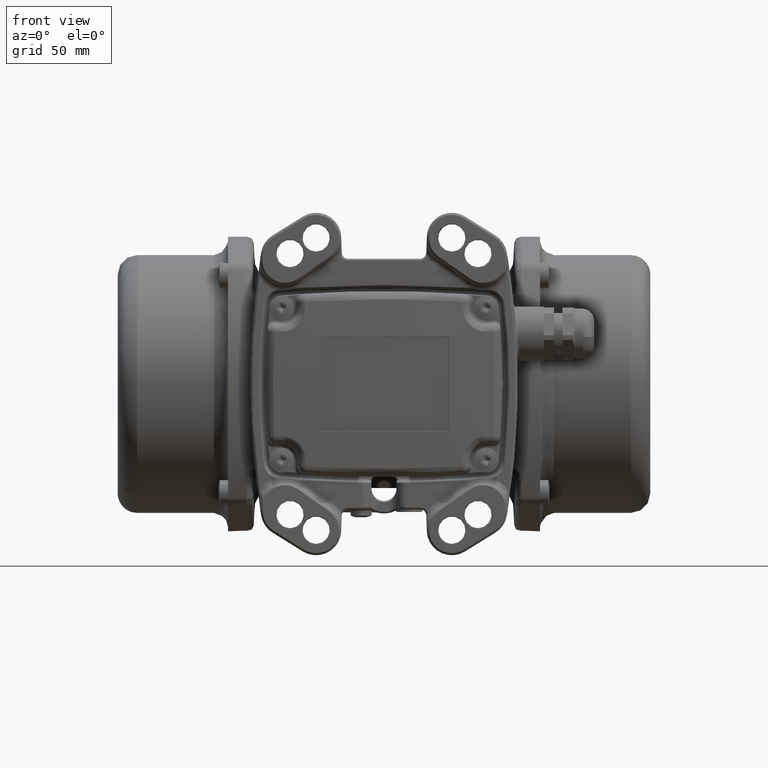
[diagram: clean part render]
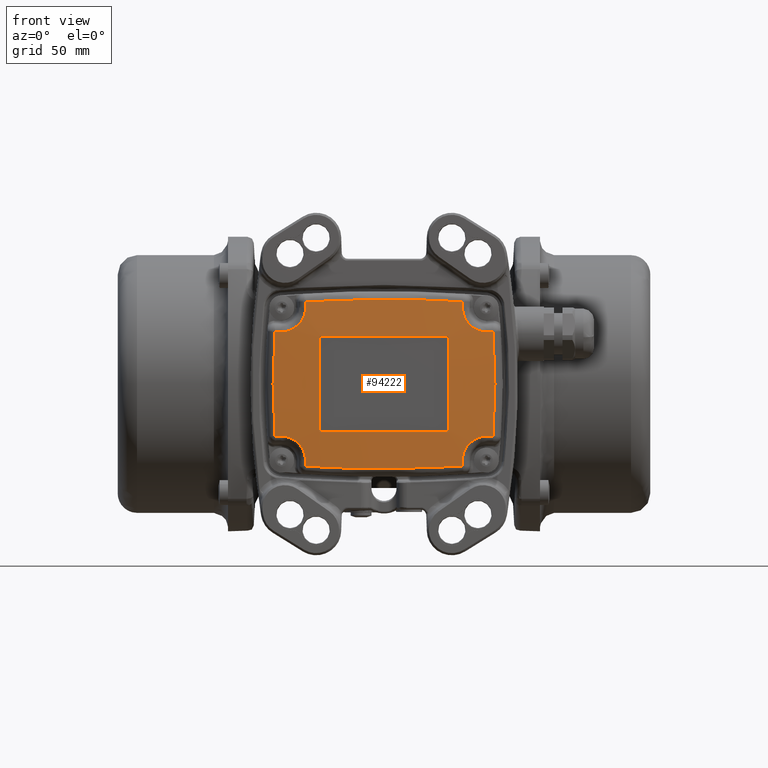
[diagram: same view with one face highlighted and labeled with its STEP entity id]
A machine part, front view. The second image highlights one B-rep face of the part: STEP entity #94222.
In plain terms, the highlighted face is a freeform B-spline surface patch.
Its self-contained STEP definition (entity closure, byte-faithful):
#812 = EDGE_CURVE ( 'NONE', #86250, #3544, #73728, .T. ) ;
#866 = EDGE_CURVE ( 'NONE', #70400, #115326, #30362, .T. ) ;
#1364 =( BOUNDED_SURFACE ( )  B_SPLINE_SURFACE ( 3, 3, ( 
 ( #114394, #132785, #132695, #70823 ),
 ( #48204, #16204, #103019, #116739 ),
 ( #107544, #82432, #105279, #61848 ),
 ( #59613, #135119, #41381, #52790 ) ),
 .UNSPECIFIED., .F., .F., .F. ) 
 B_SPLINE_SURFACE_WITH_KNOTS ( ( 4, 4 ),
 ( 4, 4 ),
 ( 0.4871367932843669900, 0.5128632067156330100 ),
 ( 0.0000000000000000000, 1.000000000000000000 ),
 .UNSPECIFIED. ) 
 GEOMETRIC_REPRESENTATION_ITEM ( )  RATIONAL_B_SPLINE_SURFACE ( (
 ( 0.5016008385710260000, 0.5008450018479929700, 0.5008450018479929700, 0.5016008385710260000),
 ( 0.5011607277355240000, 0.5004055541930649800, 0.5004055541930649800, 0.5011607277355240000),
 ( 0.5011607277355240000, 0.5004055541930649800, 0.5004055541930649800, 0.5011607277355240000),
 ( 0.5016008385710260000, 0.5008450018479929700, 0.5008450018479929700, 0.5016008385710260000) ) ) 
 REPRESENTATION_ITEM ( '' )  SURFACE ( )  );
#1473 = CARTESIAN_POINT ( 'NONE',  ( 52.81524817154758700, 2.875063275322053100, 16.65728753357093000 ) ) ;
#1859 = CARTESIAN_POINT ( 'NONE',  ( -44.06301894063135200, 2.642379956203949800, -26.18110050542689700 ) ) ;
#2108 = CARTESIAN_POINT ( 'NONE',  ( 37.93716485728749900, 2.606402533986150100, -33.63715605715904600 ) ) ;
#2764 = CARTESIAN_POINT ( 'NONE',  ( -52.81524817303401400, 2.875063275423016300, -16.65728753369240800 ) ) ;
#2855 = VERTEX_POINT ( 'NONE', #140375 ) ;
#3451 = CARTESIAN_POINT ( 'NONE',  ( 30.00000000000000000, 1.892782702349210100, -23.00000000000000000 ) ) ;
#3544 = VERTEX_POINT ( 'NONE', #40802 ) ;
#3774 = CARTESIAN_POINT ( 'NONE',  ( -38.16002935998825800, 2.586573972529019500, 32.90459729198814600 ) ) ;
#4007 = ORIENTED_EDGE ( 'NONE', *, *, #81472, .F. ) ;
#4437 = CARTESIAN_POINT ( 'NONE',  ( -31.00000000000000000, 1.902865526397729900, 22.00000000000000000 ) ) ;
#4689 = VERTEX_POINT ( 'NONE', #107903 ) ;
#5135 = CARTESIAN_POINT ( 'NONE',  ( 37.54392889165274000, 2.806128083525811300, -38.49131229580952900 ) ) ;
#5787 = CARTESIAN_POINT ( 'NONE',  ( 37.54183547159540500, 2.686201719472045100, 35.91052130750154700 ) ) ;
#5987 = CARTESIAN_POINT ( 'NONE',  ( -39.94739249721833800, 2.542089784710939600, 29.52930500151580200 ) ) ;
#6106 = CARTESIAN_POINT ( 'NONE',  ( -39.94989948243100000, 2.543520464495070000, -29.55715623813360100 ) ) ;
#6417 = CARTESIAN_POINT ( 'NONE',  ( -40.43920337565280200, 2.546349942903185100, -28.96067049744884900 ) ) ;
#6663 = CARTESIAN_POINT ( 'NONE',  ( 37.84284836838715200, 2.617780749911715200, -34.01235934361579900 ) ) ;
#7122 = EDGE_CURVE ( 'NONE', #102307, #70400, #109196, .T. ) ;
#7319 = CARTESIAN_POINT ( 'NONE',  ( -53.12111026439221500, 2.765606075334226000, 8.328623208491478600 ) ) ;
#7372 = CARTESIAN_POINT ( 'NONE',  ( 37.54392889169306400, 2.806128083527994500, 38.49131229581573900 ) ) ;
#8011 = CARTESIAN_POINT ( 'NONE',  ( 30.61452855930438900, 1.910351011505558900, -22.79960333078422300 ) ) ;
#8356 = CARTESIAN_POINT ( 'NONE',  ( -37.61704535845265700, 2.655818562387674700, 35.14626718639181000 ) ) ;
#8360 = CARTESIAN_POINT ( 'NONE',  ( 42.09572777247855400, 2.576148141032645000, 27.38249567116664800 ) ) ;
#8680 = CARTESIAN_POINT ( 'NONE',  ( -48.47444679830560000, 2.859457358501505300, -24.98172596185515100 ) ) ;
#8852 = B_SPLINE_CURVE_WITH_KNOTS ( 'NONE', 3,
 ( #116874, #32287, #27716, #107677, #45991, #87129, #130632, #68807 ),
 .UNSPECIFIED., .F., .F.,
 ( 4, 2, 2, 4 ),
 ( 2.430363415583862600E-016, 0.0003906244893182076500, 0.0007812489786361723300, 0.001562497957272101600 ),
 .UNSPECIFIED. ) ;
#8909 = CARTESIAN_POINT ( 'NONE',  ( 41.52685450969410400, 2.563593362068095100, -27.87380235629125000 ) ) ;
#9205 = CARTESIAN_POINT ( 'NONE',  ( 31.00000000000000000, 1.902865526397794900, 22.00000000000000000 ) ) ;
#10166 = VERTEX_POINT ( 'NONE', #47501 ) ;
#10378 = CARTESIAN_POINT ( 'NONE',  ( 37.83909803703925000, 2.618315880228835100, 34.02908335875869700 ) ) ;
#10689 = CARTESIAN_POINT ( 'NONE',  ( 41.50647182326255100, 2.562025763685615000, 27.86701594705605000 ) ) ;
#11585 = VERTEX_POINT ( 'NONE', #19628 ) ;
#12078 = EDGE_LOOP ( 'NONE', ( #99882, #30810, #84493, #71059, #120564, #109213, #80353, #70059, #88621, #87773, #123507, #33637, #125932, #107850, #78002, #46082 ) ) ;
#12817 = CARTESIAN_POINT ( 'NONE',  ( -46.59439272607149000, 2.757081961711464600, 25.27797708844844800 ) ) ;
#12919 = CARTESIAN_POINT ( 'NONE',  ( 49.24623146189709600, 2.907106212039035400, 24.98255766441220200 ) ) ;
#13233 = CARTESIAN_POINT ( 'NONE',  ( -37.83909803703925000, 2.618315880229395100, -34.02908335877180000 ) ) ;
#13478 = CARTESIAN_POINT ( 'NONE',  ( -30.13198817827287000, 1.897737788803681700, 22.99999999999999300 ) ) ;
#13558 = ORIENTED_EDGE ( 'NONE', *, *, #108963, .F. ) ;
#13751 = FACE_BOUND ( 'NONE', #76527, .T. ) ;
#15014 = B_SPLINE_CURVE_WITH_KNOTS ( 'NONE', 3,
 ( #15913, #95929, #100502, #20530, #34215, #52507 ),
 .UNSPECIFIED., .F., .F.,
 ( 4, 2, 4 ),
 ( 0.0000000000000000000, 0.5000000000001018100, 1.000000000000000000 ),
 .UNSPECIFIED. ) ;
#15162 = CARTESIAN_POINT ( 'NONE',  ( -45.48897565038739500, 2.703298082380049600, 25.59182184594615000 ) ) ;
#15422 = ORIENTED_EDGE ( 'NONE', *, *, #85384, .F. ) ;
#15913 = CARTESIAN_POINT ( 'NONE',  ( -37.54470649925799800, 2.850674609013264900, 39.39538454969134300 ) ) ;
#16176 = B_SPLINE_CURVE_WITH_KNOTS ( 'NONE', 3,
 ( #70027, #1473, #115746, #108909, #26667, #124937 ),
 .UNSPECIFIED., .F., .F.,
 ( 4, 2, 4 ),
 ( 0.0000000000000000000, 0.4999999999999977800, 1.000000000000000000 ),
 .UNSPECIFIED. ) ;
#16204 = CARTESIAN_POINT ( 'NONE',  ( 17.97915209914969400, 0.04626742185754713400, 13.68893127246250600 ) ) ;
#16791 = CARTESIAN_POINT ( 'NONE',  ( 30.00000000000000000, 1.892782702349149900, 23.00000000000000000 ) ) ;
#16967 = CARTESIAN_POINT ( 'NONE',  ( -51.21619202088125900, 3.030560294266985800, 24.98471253591785400 ) ) ;
#18091 = CARTESIAN_POINT ( 'NONE',  ( 37.54245399917070400, 2.721635527128950300, -36.68294858989130300 ) ) ;
#19628 = CARTESIAN_POINT ( 'NONE',  ( 37.54245399917070400, 2.721635527128950300, -36.68294858989130300 ) ) ;
#19803 = EDGE_CURVE ( 'NONE', #4689, #59611, #15014, .T. ) ;
#19807 = CARTESIAN_POINT ( 'NONE',  ( -38.15375263586454900, 2.587028548022955100, -32.92296201620160200 ) ) ;
#20530 = CARTESIAN_POINT ( 'NONE',  ( 12.51491767263478400, 2.025472868427448800, 40.54485953131023000 ) ) ;
#20896 = B_SPLINE_CURVE_WITH_KNOTS ( 'NONE', 3,
 ( #72338, #5787, #60607, #10378, #104348, #42701, #140747, #122640, #134208, #118053, #56318, #60912, #69999, #10689, #8360, #136440, #24083, #78915, #97207, #35491, #88316, #26640, #106603, #44924, #74597, #12919 ),
 .UNSPECIFIED., .F., .F.,
 ( 4, 2, 2, 2, 2, 2, 2, 2, 2, 2, 2, 2, 4 ),
 ( 0.0000000000000000000, 0.1249999999999999700, 0.1875000000000000300, 0.2500000000000000600, 0.3750000000000001700, 0.4374999999999998900, 0.5000000000000002200, 0.6250000000000008900, 0.6874999999999994400, 0.7500000000000003300, 0.8125000000000001100, 0.8749999999999993300, 1.000000000000000000 ),
 .UNSPECIFIED. ) ;
#21518 = CARTESIAN_POINT ( 'NONE',  ( -37.54245399916925400, 2.721635527128849900, -36.68294858989124700 ) ) ;
#22470 = EDGE_CURVE ( 'NONE', #108661, #52294, #20896, .T. ) ;
#22605 = VERTEX_POINT ( 'NONE', #95077 ) ;
#22637 = B_SPLINE_CURVE_WITH_KNOTS ( 'NONE', 3,
 ( #89125, #82323, #107439, #137269 ),
 .UNSPECIFIED., .F., .F.,
 ( 4, 4 ),
 ( 0.0000000000000000000, 1.000000000000000000 ),
 .UNSPECIFIED. ) ;
#22696 = CARTESIAN_POINT ( 'NONE',  ( -30.26153314473724300, 1.901888544185258400, 22.97404513623068900 ) ) ;
#24083 = CARTESIAN_POINT ( 'NONE',  ( 43.38774351359219800, 2.617275654854780400, 26.54179121983660400 ) ) ;
#24704 = VERTEX_POINT ( 'NONE', #120776 ) ;
#24714 = CARTESIAN_POINT ( 'NONE',  ( -38.72421177387589400, 2.556737118168694900, -31.49445175217565300 ) ) ;
#25710 = VERTEX_POINT ( 'NONE', #57818 ) ;
#26634 = CARTESIAN_POINT ( 'NONE',  ( -39.10558097886119100, 2.549389139244644400, 30.82105074683390500 ) ) ;
#26640 = CARTESIAN_POINT ( 'NONE',  ( 46.20290854489290000, 2.737419454893045100, 25.37572471492940100 ) ) ;
#26667 = CARTESIAN_POINT ( 'NONE',  ( 52.81524817203708700, 2.875063275355019600, -16.65728753360122400 ) ) ;
#27201 = CARTESIAN_POINT ( 'NONE',  ( -30.61452855930439300, 1.910351011505510200, 22.79960333078409100 ) ) ;
#27206 = CARTESIAN_POINT ( 'NONE',  ( 39.30496341503934600, 2.546451930591120000, -30.48872996053205100 ) ) ;
#27716 = CARTESIAN_POINT ( 'NONE',  ( -30.97402466292233900, 1.909074721929224800, -22.26162247081014900 ) ) ;
#28356 = CARTESIAN_POINT ( 'NONE',  ( 51.21619202087925500, 3.030560294287400100, 24.98471253657517000 ) ) ;
#29078 = CARTESIAN_POINT ( 'NONE',  ( -10.00469153641473100, 1.142120912638206800, 22.99999999999995000 ) ) ;
#29824 = FACE_OUTER_BOUND ( 'NONE', #12078, .T. ) ;
#30326 = CARTESIAN_POINT ( 'NONE',  ( -30.00000000000000000, 1.892782702349180100, -23.00000000000000000 ) ) ;
#30362 = B_SPLINE_CURVE_WITH_KNOTS ( 'NONE', 3,
 ( #49290, #78986, #44803, #69859 ),
 .UNSPECIFIED., .F., .F.,
 ( 4, 4 ),
 ( 0.0000000000000000000, 1.000000000000000000 ),
 .UNSPECIFIED. ) ;
#30781 = CARTESIAN_POINT ( 'NONE',  ( 31.00000000000000000, 1.902865526397775000, -22.00000000000000000 ) ) ;
#30810 = ORIENTED_EDGE ( 'NONE', *, *, #77265, .F. ) ;
#31218 = CARTESIAN_POINT ( 'NONE',  ( -42.12373716613669900, 2.577985303583344700, 27.38489474103009900 ) ) ;
#31751 = CARTESIAN_POINT ( 'NONE',  ( -25.02989003420525200, 2.299731648476369000, -40.16242105849983800 ) ) ;
#31784 = CARTESIAN_POINT ( 'NONE',  ( 39.10558097885769500, 2.549389139241284900, -30.82105074674865000 ) ) ;
#31857 = CARTESIAN_POINT ( 'NONE',  ( 12.51491767263984500, 2.025472868427446100, -40.54485953131022300 ) ) ;
#32287 = CARTESIAN_POINT ( 'NONE',  ( -31.00000000000002800, 1.906491263009946000, -22.13203185723004700 ) ) ;
#33637 = ORIENTED_EDGE ( 'NONE', *, *, #101027, .F. ) ;
#34032 = CARTESIAN_POINT ( 'NONE',  ( -30.00000000000000000, 1.892782702349125000, 23.00000000000000000 ) ) ;
#34215 = CARTESIAN_POINT ( 'NONE',  ( 25.02989003390079100, 2.299731648220397300, 40.16242105358686800 ) ) ;
#34733 = B_SPLINE_CURVE_WITH_KNOTS ( 'NONE', 3,
 ( #117937, #56213, #136332, #12817, #92784, #15162, #42602, #92885, #129438, #140938, #31218, #67631, #58581, #40352, #5987, #88311, #26634, #106599, #95178, #56313, #3774, #83739, #111111, #8356, #102002, #49424 ),
 .UNSPECIFIED., .F., .F.,
 ( 4, 2, 2, 2, 2, 2, 2, 2, 2, 2, 2, 2, 4 ),
 ( 0.0000000000000000000, 0.1250000000000001400, 0.1875000000000001900, 0.2500000000000002800, 0.3750000000000003900, 0.4375000000000002200, 0.5000000000000005600, 0.6250000000000001100, 0.6875000000000010000, 0.7500000000000008900, 0.8125000000000005600, 0.8750000000000022200, 1.000000000000000000 ),
 .UNSPECIFIED. ) ;
#35491 = CARTESIAN_POINT ( 'NONE',  ( 45.11163441522540300, 2.686210428177375300, 25.72667158829535000 ) ) ;
#36132 = CARTESIAN_POINT ( 'NONE',  ( 31.00000000000000000, 1.500179009793226200, 7.336097363008673400 ) ) ;
#36235 = CARTESIAN_POINT ( 'NONE',  ( 31.00000000000000000, 1.500179009793229700, -7.336097363008413200 ) ) ;
#36269 = CARTESIAN_POINT ( 'NONE',  ( 43.38857209560244900, 2.616314502997144900, -26.51971218548595000 ) ) ;
#37037 = CARTESIAN_POINT ( 'NONE',  ( -53.12111026502001500, 2.765606075376011700, -8.328623208490780500 ) ) ;
#38644 = CARTESIAN_POINT ( 'NONE',  ( 40.43236099651014800, 2.544997167361109800, -28.94035696710074700 ) ) ;
#39695 = CARTESIAN_POINT ( 'NONE',  ( 49.24623146189709600, 2.907106212039035400, 24.98255766441220200 ) ) ;
#39908 = CARTESIAN_POINT ( 'NONE',  ( -50.23126984647083000, 2.967921037647006900, 24.98361917706639800 ) ) ;
#40049 = EDGE_CURVE ( 'NONE', #66013, #120987, #59960, .T. ) ;
#40352 = CARTESIAN_POINT ( 'NONE',  ( -40.43236099650503900, 2.544997167364399600, 28.94035696720459700 ) ) ;
#40426 = B_SPLINE_CURVE_WITH_KNOTS ( 'NONE', 3,
 ( #58067, #133677, #115299, #21518 ),
 .UNSPECIFIED., .F., .F.,
 ( 4, 4 ),
 ( 0.0000000000000000000, 1.000000000000000000 ),
 .UNSPECIFIED. ) ;
#40529 = CARTESIAN_POINT ( 'NONE',  ( -37.54470649925799800, 2.850674609013264900, 39.39538454969134300 ) ) ;
#40802 = CARTESIAN_POINT ( 'NONE',  ( 31.00000000000000000, 1.902865526397775000, -22.00000000000000000 ) ) ;
#40996 =( BOUNDED_CURVE ( )  B_SPLINE_CURVE ( 3, ( #30326, #53104, #103741, #131340 ),
 .UNSPECIFIED., .F., .F. ) 
 B_SPLINE_CURVE_WITH_KNOTS ( ( 4, 4 ),
 ( 0.0000000000000000000, 0.06001057696739398700 ),
 .UNSPECIFIED. ) 
 CURVE ( )  GEOMETRIC_REPRESENTATION_ITEM ( )  RATIONAL_B_SPLINE_CURVE ( ( 0.5009838173028934300, 0.5007488891380913500, 0.5007490737949262800, 0.5009843712733984500 ) ) 
 REPRESENTATION_ITEM ( '' )  );
#41381 = CARTESIAN_POINT ( 'NONE',  ( -17.99776099484701700, 1.449045158675200500, -41.03076129999738000 ) ) ;
#41558 = VERTEX_POINT ( 'NONE', #131288 ) ;
#41632 = CARTESIAN_POINT ( 'NONE',  ( 37.54470649925910700, 2.850674609016115000, -39.39538454974849200 ) ) ;
#41980 = CARTESIAN_POINT ( 'NONE',  ( 30.79950004440454200, 1.912217033368816000, 22.61466219939200400 ) ) ;
#42602 = CARTESIAN_POINT ( 'NONE',  ( -45.12367237537219500, 2.686741460803554900, 25.72206225809860000 ) ) ;
#42701 = CARTESIAN_POINT ( 'NONE',  ( 38.15375263587034700, 2.587028548026345300, 32.92296201627600300 ) ) ;
#43005 = CARTESIAN_POINT ( 'NONE',  ( -46.20290854489270100, 2.737419454893429600, -25.37572471493870200 ) ) ;
#43072 = B_SPLINE_CURVE_WITH_KNOTS ( 'NONE', 3,
 ( #96444, #7372, #89589, #121569 ),
 .UNSPECIFIED., .F., .F.,
 ( 4, 4 ),
 ( 0.0000000000000000000, 1.000000000000000000 ),
 .UNSPECIFIED. ) ;
#43216 = CARTESIAN_POINT ( 'NONE',  ( -37.54245399916925400, 2.721635527128849900, -36.68294858989124700 ) ) ;
#44412 = ORIENTED_EDGE ( 'NONE', *, *, #97020, .F. ) ;
#44803 = CARTESIAN_POINT ( 'NONE',  ( -51.21619202088286500, 3.030560294251003000, -24.98471253540190800 ) ) ;
#44924 = CARTESIAN_POINT ( 'NONE',  ( 47.71090312585891300, 2.815793518764940100, 25.05659072269169800 ) ) ;
#45496 = CARTESIAN_POINT ( 'NONE',  ( 38.28888708050040200, 2.578062844891624700, -32.54549864939775000 ) ) ;
#45854 = EDGE_CURVE ( 'NONE', #59611, #108661, #43072, .T. ) ;
#45991 = CARTESIAN_POINT ( 'NONE',  ( -30.79950004440451700, 1.912217033368768900, -22.61466219939193000 ) ) ;
#46082 = ORIENTED_EDGE ( 'NONE', *, *, #91670, .F. ) ;
#46626 = CARTESIAN_POINT ( 'NONE',  ( 52.20099806787700200, 3.095023943256494500, 24.98583774727970000 ) ) ;
#47439 = EDGE_CURVE ( 'NONE', #124636, #71356, #76186, .T. ) ;
#47501 = CARTESIAN_POINT ( 'NONE',  ( -37.54245399916895600, 2.721635527128834800, 36.68294858989130300 ) ) ;
#47742 = CARTESIAN_POINT ( 'NONE',  ( 38.58097894422675000, 2.563808555164394800, -31.84146730724490100 ) ) ;
#48204 = CARTESIAN_POINT ( 'NONE',  ( 53.80612426378294800, 2.460312140728272600, 13.68893127246252400 ) ) ;
#49290 = CARTESIAN_POINT ( 'NONE',  ( -49.24623146189679800, 2.907106212042499700, -24.98255766451844900 ) ) ;
#49424 = CARTESIAN_POINT ( 'NONE',  ( -37.54245399916895600, 2.721635527128834800, 36.68294858989130300 ) ) ;
#49549 = CARTESIAN_POINT ( 'NONE',  ( -44.40783960899284500, 2.656174147270919900, -26.01817963570480100 ) ) ;
#49846 = CARTESIAN_POINT ( 'NONE',  ( -37.93146311607895200, 2.607019434216289800, -33.65828988356960100 ) ) ;
#50756 = CARTESIAN_POINT ( 'NONE',  ( -52.20099806790010200, 3.095023943257309500, 24.98583774725984700 ) ) ;
#51129 = CARTESIAN_POINT ( 'NONE',  ( 50.23126984646982200, 2.967921037661878100, 24.98361917754699100 ) ) ;
#51861 = CARTESIAN_POINT ( 'NONE',  ( -37.54245399916895600, 2.721635527128834800, 36.68294858989130300 ) ) ;
#52294 = VERTEX_POINT ( 'NONE', #85733 ) ;
#52331 = B_SPLINE_CURVE_WITH_KNOTS ( 'NONE', 3,
 ( #99033, #103631, #76158, #119578, #41980, #101280, #78487, #16791 ),
 .UNSPECIFIED., .F., .F.,
 ( 4, 2, 2, 4 ),
 ( 0.0000000000000000000, 0.0003906244893179716700, 0.0007812489786359433500, 0.001562497957271886700 ),
 .UNSPECIFIED. ) ;
#52338 = CARTESIAN_POINT ( 'NONE',  ( 42.43395542940390200, 2.586602288713045100, -27.15560101696740200 ) ) ;
#52507 = CARTESIAN_POINT ( 'NONE',  ( 37.54470649924790100, 2.850674609013080100, 39.39538454969739700 ) ) ;
#52790 = CARTESIAN_POINT ( 'NONE',  ( -53.76188572595938100, 3.861105088452391400, -41.03076129999730900 ) ) ;
#53087 = CARTESIAN_POINT ( 'NONE',  ( -52.20099806789570400, 3.095023943256689900, -24.98583774724964700 ) ) ;
#53104 = CARTESIAN_POINT ( 'NONE',  ( -10.00469153641471300, 1.142120912638209500, -23.00000000000006800 ) ) ;
#53301 = VERTEX_POINT ( 'NONE', #105306 ) ;
#53776 = EDGE_CURVE ( 'NONE', #52294, #53301, #72952, .T. ) ;
#54121 = CARTESIAN_POINT ( 'NONE',  ( -45.11163441520770300, 2.686210428172655100, -25.72667158818050100 ) ) ;
#55317 = CARTESIAN_POINT ( 'NONE',  ( -52.81524817337662400, 2.875063275445216300, 16.65728753368784300 ) ) ;
#56213 = CARTESIAN_POINT ( 'NONE',  ( -48.47445888857850300, 2.859458104948649800, 24.98172597525720200 ) ) ;
#56313 = CARTESIAN_POINT ( 'NONE',  ( -38.28888708050370600, 2.578062844890859600, 32.54549864937494200 ) ) ;
#56318 = CARTESIAN_POINT ( 'NONE',  ( 39.94989948241925500, 2.543520464495309800, 29.55715623815275000 ) ) ;
#56887 = CARTESIAN_POINT ( 'NONE',  ( 39.94739249719874900, 2.542089784711695000, -29.52930500156405100 ) ) ;
#57818 = CARTESIAN_POINT ( 'NONE',  ( -31.00000000000000000, 1.902865526397729900, 22.00000000000000000 ) ) ;
#58067 = CARTESIAN_POINT ( 'NONE',  ( -37.54470649926130200, 2.850674609016190100, -39.39538454974810100 ) ) ;
#58581 = CARTESIAN_POINT ( 'NONE',  ( -41.24278524737884100, 2.557872396938324100, 28.13110340053934900 ) ) ;
#59611 = VERTEX_POINT ( 'NONE', #85393 ) ;
#59613 = CARTESIAN_POINT ( 'NONE',  ( 53.61218731782341300, 3.851023014761084000, -41.03076129999730900 ) ) ;
#59960 = B_SPLINE_CURVE_WITH_KNOTS ( 'NONE', 3,
 ( #78680, #16967, #39908, #132535 ),
 .UNSPECIFIED., .F., .F.,
 ( 4, 4 ),
 ( 0.0000000000000000000, 1.000000000000000000 ),
 .UNSPECIFIED. ) ;
#60607 = CARTESIAN_POINT ( 'NONE',  ( 37.61703710040210100, 2.656018194287599800, 35.15063496743489700 ) ) ;
#60912 = CARTESIAN_POINT ( 'NONE',  ( 40.43920337566444100, 2.546349942903194800, 28.96067049742960000 ) ) ;
#61331 = EDGE_CURVE ( 'NONE', #10166, #4689, #127877, .T. ) ;
#61345 = CARTESIAN_POINT ( 'NONE',  ( 31.00000000000000000, 1.902865526397775000, -22.00000000000000000 ) ) ;
#61483 = CARTESIAN_POINT ( 'NONE',  ( 46.22384487856579900, 2.738452340912624900, -25.37009073649045000 ) ) ;
#61848 = CARTESIAN_POINT ( 'NONE',  ( -53.75618097353793000, 2.456948498195791900, -13.68893127246210300 ) ) ;
#63731 = CARTESIAN_POINT ( 'NONE',  ( 46.59439272607410500, 2.757081961711270100, -25.27797708843634800 ) ) ;
#66013 = VERTEX_POINT ( 'NONE', #111734 ) ;
#67631 = CARTESIAN_POINT ( 'NONE',  ( -41.52685450969939800, 2.563593362066269400, 27.87380235622734800 ) ) ;
#68301 = CARTESIAN_POINT ( 'NONE',  ( 45.48897565038500100, 2.703298082379189900, -25.59182184592290100 ) ) ;
#68787 = ORIENTED_EDGE ( 'NONE', *, *, #139033, .F. ) ;
#68807 = CARTESIAN_POINT ( 'NONE',  ( -30.00000000000000000, 1.892782702349180100, -23.00000000000000000 ) ) ;
#69657 = CARTESIAN_POINT ( 'NONE',  ( 30.50361895839137800, 1.908224571309104800, -22.87380287133851200 ) ) ;
#69859 = CARTESIAN_POINT ( 'NONE',  ( -52.20099806789570400, 3.095023943256689900, -24.98583774724964700 ) ) ;
#69999 = CARTESIAN_POINT ( 'NONE',  ( 40.69669110489350300, 2.549214801778835000, 28.67680616195444900 ) ) ;
#70027 = CARTESIAN_POINT ( 'NONE',  ( 52.20099806787700200, 3.095023943256494500, 24.98583774727970000 ) ) ;
#70059 = ORIENTED_EDGE ( 'NONE', *, *, #19803, .F. ) ;
#70400 = VERTEX_POINT ( 'NONE', #107219 ) ;
#70557 = CARTESIAN_POINT ( 'NONE',  ( 44.06089950355834600, 2.641333708668809800, -26.16114214811109700 ) ) ;
#70823 = CARTESIAN_POINT ( 'NONE',  ( -53.76188572595938100, 3.861105088452411000, 41.03076129999770700 ) ) ;
#71059 = ORIENTED_EDGE ( 'NONE', *, *, #92711, .F. ) ;
#71317 = VERTEX_POINT ( 'NONE', #9205 ) ;
#71356 = VERTEX_POINT ( 'NONE', #78028 ) ;
#72229 = CARTESIAN_POINT ( 'NONE',  ( 30.00000000000000000, 1.892782702349149900, 23.00000000000000000 ) ) ;
#72338 = CARTESIAN_POINT ( 'NONE',  ( 37.54245399916920400, 2.721635527128875200, 36.68294858989135300 ) ) ;
#72351 = CARTESIAN_POINT ( 'NONE',  ( -45.47060858715760600, 2.702452522998269700, -25.59808449308609800 ) ) ;
#72952 = B_SPLINE_CURVE_WITH_KNOTS ( 'NONE', 3,
 ( #39695, #51129, #28356, #46626 ),
 .UNSPECIFIED., .F., .F.,
 ( 4, 4 ),
 ( 0.0000000000000000000, 1.000000000000000000 ),
 .UNSPECIFIED. ) ;
#73218 = ORIENTED_EDGE ( 'NONE', *, *, #79778, .F. ) ;
#73378 = CARTESIAN_POINT ( 'NONE',  ( -52.20099806789570400, 3.095023943256689900, -24.98583774724964700 ) ) ;
#73728 = B_SPLINE_CURVE_WITH_KNOTS ( 'NONE', 3,
 ( #3451, #119972, #90232, #69657, #8011, #122201, #87985, #30781 ),
 .UNSPECIFIED., .F., .F.,
 ( 4, 2, 2, 4 ),
 ( 3.469446951953614200E-018, 0.0003906245588087834300, 0.0007812491176175633900, 0.001562498235235123300 ),
 .UNSPECIFIED. ) ;
#74248 = CARTESIAN_POINT ( 'NONE',  ( -31.00000000000000000, 1.500179009793175800, -7.336097363008262200 ) ) ;
#74597 = CARTESIAN_POINT ( 'NONE',  ( 48.47444679831041700, 2.859457358494319900, 24.98172596162610000 ) ) ;
#74615 = CARTESIAN_POINT ( 'NONE',  ( -46.57800393731339700, 2.756239301774169500, -25.28164376433460000 ) ) ;
#74754 = EDGE_CURVE ( 'NONE', #120987, #10166, #34733, .T. ) ;
#75241 = CARTESIAN_POINT ( 'NONE',  ( 25.02989003420829000, 2.299731648478869700, -40.16242105854768600 ) ) ;
#75256 = CARTESIAN_POINT ( 'NONE',  ( -30.00000000000000000, 1.892782702349180100, -23.00000000000000000 ) ) ;
#76158 = CARTESIAN_POINT ( 'NONE',  ( 30.97402466292238200, 1.909074721929272500, 22.26162247081021700 ) ) ;
#76186 =( BOUNDED_CURVE ( )  B_SPLINE_CURVE ( 3, ( #115891, #104417, #29078, #92967 ),
 .UNSPECIFIED., .F., .F. ) 
 B_SPLINE_CURVE_WITH_KNOTS ( ( 4, 4 ),
 ( 0.0000000000000000000, 0.06001057696739398000 ),
 .UNSPECIFIED. ) 
 CURVE ( )  GEOMETRIC_REPRESENTATION_ITEM ( )  RATIONAL_B_SPLINE_CURVE ( ( 0.5009843712733984500, 0.5007490737949262800, 0.5007488891380912400, 0.5009838173028933200 ) ) 
 REPRESENTATION_ITEM ( '' )  );
#76527 = EDGE_LOOP ( 'NONE', ( #97571, #68787, #15422, #4007, #44412, #78111, #13558, #73218 ) ) ;
#77265 = EDGE_CURVE ( 'NONE', #24704, #11585, #110340, .T. ) ;
#78002 = ORIENTED_EDGE ( 'NONE', *, *, #102318, .F. ) ;
#78028 = CARTESIAN_POINT ( 'NONE',  ( -30.00000000000000000, 1.892782702349125000, 23.00000000000000000 ) ) ;
#78111 = ORIENTED_EDGE ( 'NONE', *, *, #47439, .F. ) ;
#78487 = CARTESIAN_POINT ( 'NONE',  ( 30.26397583720585500, 1.902692855761295000, 23.00000000000000000 ) ) ;
#78680 = CARTESIAN_POINT ( 'NONE',  ( -52.20099806790010200, 3.095023943257309500, 24.98583774725984700 ) ) ;
#78915 = CARTESIAN_POINT ( 'NONE',  ( 44.06301894063570000, 2.642379956203829900, 26.18110050541555000 ) ) ;
#78986 = CARTESIAN_POINT ( 'NONE',  ( -50.23126984646904000, 2.967921037665502300, -24.98361917765424100 ) ) ;
#79239 = CARTESIAN_POINT ( 'NONE',  ( -40.69669110489985500, 2.549214801779765300, -28.67680616197510100 ) ) ;
#79778 = EDGE_CURVE ( 'NONE', #3544, #71317, #122957, .T. ) ;
#79790 = CARTESIAN_POINT ( 'NONE',  ( 37.54183544373420000, 2.686200139397565400, -35.91048686348990100 ) ) ;
#80353 = ORIENTED_EDGE ( 'NONE', *, *, #45854, .F. ) ;
#80491 = CARTESIAN_POINT ( 'NONE',  ( 37.54245399917070400, 2.721635527128950300, -36.68294858989130300 ) ) ;
#81472 = EDGE_CURVE ( 'NONE', #25710, #41558, #138002, .T. ) ;
#81492 = CARTESIAN_POINT ( 'NONE',  ( -37.54245399916925400, 2.721635527128849900, -36.68294858989124700 ) ) ;
#82323 = CARTESIAN_POINT ( 'NONE',  ( 51.21619202088282900, 3.030560294253595200, -24.98471253548532200 ) ) ;
#82432 = CARTESIAN_POINT ( 'NONE',  ( 17.97915209914969400, 0.04626742185754362900, -13.68893127246208900 ) ) ;
#83739 = CARTESIAN_POINT ( 'NONE',  ( -37.93716485728745600, 2.606402533986959600, 33.63715605717614900 ) ) ;
#83921 = CARTESIAN_POINT ( 'NONE',  ( -37.54317806073728300, 2.763115031827068100, 37.58716699501571400 ) ) ;
#84493 = ORIENTED_EDGE ( 'NONE', *, *, #91120, .F. ) ;
#85384 = EDGE_CURVE ( 'NONE', #41558, #94012, #8852, .T. ) ;
#85393 = CARTESIAN_POINT ( 'NONE',  ( 37.54470649924790100, 2.850674609013080100, 39.39538454969739700 ) ) ;
#85733 = CARTESIAN_POINT ( 'NONE',  ( 49.24623146189709600, 2.907106212039035400, 24.98255766441220200 ) ) ;
#86088 = CARTESIAN_POINT ( 'NONE',  ( -41.50647182324999600, 2.562025763683385200, -27.86701594701525100 ) ) ;
#86250 = VERTEX_POINT ( 'NONE', #139186 ) ;
#86402 = CARTESIAN_POINT ( 'NONE',  ( -42.09572777247860400, 2.576148141032755100, -27.38249567116635300 ) ) ;
#86629 = CARTESIAN_POINT ( 'NONE',  ( 37.61704535843944800, 2.655818562385475100, -35.14626718635465600 ) ) ;
#87129 = CARTESIAN_POINT ( 'NONE',  ( -30.52290976532976800, 1.909432216014906600, -22.89140627032748700 ) ) ;
#87773 = ORIENTED_EDGE ( 'NONE', *, *, #74754, .F. ) ;
#87985 = CARTESIAN_POINT ( 'NONE',  ( 31.00000000000006800, 1.910117067208319000, -22.26406617562086900 ) ) ;
#88311 = CARTESIAN_POINT ( 'NONE',  ( -39.30496341502953300, 2.546451930591634700, 30.48872996055629900 ) ) ;
#88316 = CARTESIAN_POINT ( 'NONE',  ( 45.47060858715730800, 2.702452522998454800, 25.59808449309535000 ) ) ;
#88621 = ORIENTED_EDGE ( 'NONE', *, *, #61331, .F. ) ;
#88868 = CARTESIAN_POINT ( 'NONE',  ( 41.24278524737624700, 2.557872396940164900, -28.13110340059114700 ) ) ;
#89125 = CARTESIAN_POINT ( 'NONE',  ( 52.20099806788330500, 3.095023943256249900, -24.98583774725915100 ) ) ;
#89589 = CARTESIAN_POINT ( 'NONE',  ( 37.54317806074298100, 2.763115031827506000, 37.58716699501778200 ) ) ;
#90232 = CARTESIAN_POINT ( 'NONE',  ( 30.26153314473726800, 1.901888544185305100, -22.97404513623059300 ) ) ;
#91120 = EDGE_CURVE ( 'NONE', #22605, #24704, #22637, .T. ) ;
#91670 = EDGE_CURVE ( 'NONE', #95336, #2855, #133937, .T. ) ;
#92711 = EDGE_CURVE ( 'NONE', #53301, #22605, #16176, .T. ) ;
#92784 = CARTESIAN_POINT ( 'NONE',  ( -46.22384487856329100, 2.738452340911729600, 25.37009073646740000 ) ) ;
#92885 = CARTESIAN_POINT ( 'NONE',  ( -44.06089950356114600, 2.641333708667459300, 26.16114214806915000 ) ) ;
#92967 = CARTESIAN_POINT ( 'NONE',  ( -30.00000000000000000, 1.892782702349125000, 23.00000000000000000 ) ) ;
#93433 = CARTESIAN_POINT ( 'NONE',  ( -12.51491767263969600, 2.025472868427456300, -40.54485953131022300 ) ) ;
#93463 = CARTESIAN_POINT ( 'NONE',  ( -30.89132530933534300, 1.913148850822589800, 22.52305118310258100 ) ) ;
#93466 = CARTESIAN_POINT ( 'NONE',  ( 45.12367237537360200, 2.686741460803090000, -25.72206225807715200 ) ) ;
#94012 = VERTEX_POINT ( 'NONE', #75256 ) ;
#94222 = ADVANCED_FACE ( 'NONE', ( #13751, #29824 ), #1364, .F. ) ;
#95077 = CARTESIAN_POINT ( 'NONE',  ( 52.20099806788330500, 3.095023943256249900, -24.98583774725915100 ) ) ;
#95178 = CARTESIAN_POINT ( 'NONE',  ( -38.58097894422346000, 2.563808555165134200, 31.84146730726749300 ) ) ;
#95336 = VERTEX_POINT ( 'NONE', #137683 ) ;
#95929 = CARTESIAN_POINT ( 'NONE',  ( -25.02989003391178700, 2.299731648221361000, 40.16242105360133500 ) ) ;
#96440 = CARTESIAN_POINT ( 'NONE',  ( 37.54317806070158500, 2.763115031825446300, -37.58716699501537300 ) ) ;
#96444 = CARTESIAN_POINT ( 'NONE',  ( 37.54470649924790100, 2.850674609013080100, 39.39538454969739700 ) ) ;
#97020 = EDGE_CURVE ( 'NONE', #71356, #25710, #119283, .T. ) ;
#97207 = CARTESIAN_POINT ( 'NONE',  ( 44.40783960897509500, 2.656174147266225000, 26.01817963558979900 ) ) ;
#97571 = ORIENTED_EDGE ( 'NONE', *, *, #812, .F. ) ;
#97988 = CARTESIAN_POINT ( 'NONE',  ( 38.16002935998825100, 2.586573972529639900, -32.90459729200534900 ) ) ;
#98559 = EDGE_CURVE ( 'NONE', #11585, #95336, #115676, .T. ) ;
#99033 = CARTESIAN_POINT ( 'NONE',  ( 31.00000000000000000, 1.902865526397794900, 22.00000000000000000 ) ) ;
#99769 = CARTESIAN_POINT ( 'NONE',  ( -49.24623146189679800, 2.907106212042499700, -24.98255766451844900 ) ) ;
#99882 = ORIENTED_EDGE ( 'NONE', *, *, #98559, .F. ) ;
#100502 = CARTESIAN_POINT ( 'NONE',  ( -12.51491767263979100, 2.025472868427439500, 40.54485953131023000 ) ) ;
#101027 = EDGE_CURVE ( 'NONE', #115326, #66013, #102160, .T. ) ;
#101280 = CARTESIAN_POINT ( 'NONE',  ( 30.52290976532976800, 1.909432216014952600, 22.89140627032754000 ) ) ;
#102002 = CARTESIAN_POINT ( 'NONE',  ( -37.54183544363125700, 2.686200139391469400, 35.91048686346236000 ) ) ;
#102160 = B_SPLINE_CURVE_WITH_KNOTS ( 'NONE', 3,
 ( #53087, #2764, #37037, #7319, #55317, #50756 ),
 .UNSPECIFIED., .F., .F.,
 ( 4, 2, 4 ),
 ( 0.0000000000000000000, 0.4999999999999651900, 1.000000000000000000 ),
 .UNSPECIFIED. ) ;
#102178 = CARTESIAN_POINT ( 'NONE',  ( -37.54392889171163000, 2.806128083528522500, 38.49131229580891000 ) ) ;
#102307 = VERTEX_POINT ( 'NONE', #43216 ) ;
#102318 = EDGE_CURVE ( 'NONE', #2855, #102307, #40426, .T. ) ;
#103019 = CARTESIAN_POINT ( 'NONE',  ( -17.92905789702237500, 0.04514451562989531300, 13.68893127246250600 ) ) ;
#103631 = CARTESIAN_POINT ( 'NONE',  ( 31.00000000000000400, 1.906491263009989700, 22.13203185723028800 ) ) ;
#103741 = CARTESIAN_POINT ( 'NONE',  ( 10.00469890990890000, 1.142121189453181800, -23.00000000000007500 ) ) ;
#104348 = CARTESIAN_POINT ( 'NONE',  ( 37.93146311607310400, 2.607019434212924900, 33.65828988349484500 ) ) ;
#104417 = CARTESIAN_POINT ( 'NONE',  ( 10.00469890990888200, 1.142121189453177500, 22.99999999999994700 ) ) ;
#104667 = CARTESIAN_POINT ( 'NONE',  ( -43.38774351359649700, 2.617275654854635200, -26.54179121982535200 ) ) ;
#105279 = CARTESIAN_POINT ( 'NONE',  ( -17.92905789702237500, 0.04514451562988831100, -13.68893127246208900 ) ) ;
#105306 = CARTESIAN_POINT ( 'NONE',  ( 52.20099806787700200, 3.095023943256494500, 24.98583774727970000 ) ) ;
#106599 = CARTESIAN_POINT ( 'NONE',  ( -38.74421297029870500, 2.558065383760360000, 31.49653455945899300 ) ) ;
#106603 = CARTESIAN_POINT ( 'NONE',  ( 46.57800393731609700, 2.756239301774024800, 25.28164376432459900 ) ) ;
#106925 = CARTESIAN_POINT ( 'NONE',  ( -39.08338501601979700, 2.548066215081900200, -30.82203771137600200 ) ) ;
#107219 = CARTESIAN_POINT ( 'NONE',  ( -49.24623146189679800, 2.907106212042499700, -24.98255766451844900 ) ) ;
#107439 = CARTESIAN_POINT ( 'NONE',  ( 50.23126984646885500, 2.967921037667943900, -24.98361917773592500 ) ) ;
#107544 = CARTESIAN_POINT ( 'NONE',  ( 53.80612426378294800, 2.460312140728268600, -13.68893127246212400 ) ) ;
#107677 = CARTESIAN_POINT ( 'NONE',  ( -30.87373419563223500, 1.911958254466450000, -22.50374489237775000 ) ) ;
#107850 = ORIENTED_EDGE ( 'NONE', *, *, #7122, .F. ) ;
#107903 = CARTESIAN_POINT ( 'NONE',  ( -37.54470649925799800, 2.850674609013264900, 39.39538454969134300 ) ) ;
#108661 = VERTEX_POINT ( 'NONE', #124425 ) ;
#108909 = CARTESIAN_POINT ( 'NONE',  ( 53.12111026464972200, 2.765606075351469500, -8.328623208490839100 ) ) ;
#108963 = EDGE_CURVE ( 'NONE', #71317, #124636, #52331, .T. ) ;
#109196 = B_SPLINE_CURVE_WITH_KNOTS ( 'NONE', 3,
 ( #81492, #134223, #122659, #13233, #49846, #19807, #141070, #24714, #106925, #129877, #6106, #6417, #79239, #86088, #86402, #111236, #104667, #1859, #49549, #54121, #72351, #43005, #74615, #132172, #8680, #99769 ),
 .UNSPECIFIED., .F., .F.,
 ( 4, 2, 2, 2, 2, 2, 2, 2, 2, 2, 2, 2, 4 ),
 ( 0.0000000000000000000, 0.1249999999999999300, 0.1874999999999999200, 0.2499999999999998600, 0.3749999999999998300, 0.4374999999999997800, 0.4999999999999997200, 0.6249999999999996700, 0.6874999999999995600, 0.7499999999999995600, 0.8124999999999995600, 0.8749999999999990000, 1.000000000000000000 ),
 .UNSPECIFIED. ) ;
#109213 = ORIENTED_EDGE ( 'NONE', *, *, #22470, .F. ) ;
#109542 = CARTESIAN_POINT ( 'NONE',  ( -30.50361895839139600, 1.908224571309060200, 22.87380287133858700 ) ) ;
#110340 = B_SPLINE_CURVE_WITH_KNOTS ( 'NONE', 3,
 ( #137007, #123233, #130126, #63731, #61483, #68301, #93466, #70557, #36269, #52338, #116284, #8909, #88868, #38644, #56887, #27206, #31784, #141613, #47742, #45496, #97988, #2108, #6663, #86629, #79790, #18091 ),
 .UNSPECIFIED., .F., .F.,
 ( 4, 2, 2, 2, 2, 2, 2, 2, 2, 2, 2, 2, 4 ),
 ( 0.0000000000000000000, 0.1249999999999999600, 0.1874999999999998600, 0.2500000000000001100, 0.3750000000000000000, 0.4374999999999998900, 0.4999999999999998300, 0.6249999999999996700, 0.6874999999999996700, 0.7499999999999995600, 0.8124999999999994400, 0.8749999999999990000, 1.000000000000000000 ),
 .UNSPECIFIED. ) ;
#111111 = CARTESIAN_POINT ( 'NONE',  ( -37.84284836838055800, 2.617780749910580100, 34.01235934359714000 ) ) ;
#111236 = CARTESIAN_POINT ( 'NONE',  ( -43.05554841191304400, 2.605914066946330100, -26.74077900117444900 ) ) ;
#111734 = CARTESIAN_POINT ( 'NONE',  ( -52.20099806790010200, 3.095023943257309500, 24.98583774725984700 ) ) ;
#113245 = CARTESIAN_POINT ( 'NONE',  ( -31.00000000000000000, 1.902865526397735000, -22.00000000000000000 ) ) ;
#114394 = CARTESIAN_POINT ( 'NONE',  ( 53.61218731782351900, 3.851023014761103500, 41.03076129999770700 ) ) ;
#115299 = CARTESIAN_POINT ( 'NONE',  ( -37.54317806069850100, 2.763115031825292600, -37.58716699501552900 ) ) ;
#115326 = VERTEX_POINT ( 'NONE', #73378 ) ;
#115676 = B_SPLINE_CURVE_WITH_KNOTS ( 'NONE', 3,
 ( #80491, #96440, #5135, #41632 ),
 .UNSPECIFIED., .F., .F.,
 ( 4, 4 ),
 ( 0.0000000000000000000, 1.000000000000000000 ),
 .UNSPECIFIED. ) ;
#115746 = CARTESIAN_POINT ( 'NONE',  ( 53.12111026476328100, 2.765606075359029200, 8.328623208490846300 ) ) ;
#115891 = CARTESIAN_POINT ( 'NONE',  ( 30.00000000000000000, 1.892782702349149900, 23.00000000000000000 ) ) ;
#116284 = CARTESIAN_POINT ( 'NONE',  ( 42.12373716614200700, 2.577985303581324900, -27.38489474096650200 ) ) ;
#116739 = CARTESIAN_POINT ( 'NONE',  ( -53.75618097353793000, 2.456948498195800300, 13.68893127246254300 ) ) ;
#116874 = CARTESIAN_POINT ( 'NONE',  ( -31.00000000000000000, 1.902865526397735000, -22.00000000000000000 ) ) ;
#117937 = CARTESIAN_POINT ( 'NONE',  ( -49.24623146189689700, 2.907106212040874800, 24.98255766447055100 ) ) ;
#118053 = CARTESIAN_POINT ( 'NONE',  ( 39.72021238001560300, 2.543579616471904900, 29.86743233476665100 ) ) ;
#119283 = B_SPLINE_CURVE_WITH_KNOTS ( 'NONE', 3,
 ( #34032, #13478, #22696, #109542, #27201, #93463, #127839, #4437 ),
 .UNSPECIFIED., .F., .F.,
 ( 4, 2, 2, 4 ),
 ( 0.0000000000000000000, 0.0003906245588088088000, 0.0007812491176176176000, 0.001562498235235242600 ),
 .UNSPECIFIED. ) ;
#119578 = CARTESIAN_POINT ( 'NONE',  ( 30.87373419563225600, 1.911958254466497500, 22.50374489237782100 ) ) ;
#119929 = CARTESIAN_POINT ( 'NONE',  ( -49.24623146189689700, 2.907106212040874800, 24.98255766447055100 ) ) ;
#119972 = CARTESIAN_POINT ( 'NONE',  ( 30.13198817827286600, 1.897737788803731700, -23.00000000000000000 ) ) ;
#120564 = ORIENTED_EDGE ( 'NONE', *, *, #53776, .F. ) ;
#120776 = CARTESIAN_POINT ( 'NONE',  ( 49.24623146189689700, 2.907106212041495200, -24.98255766448710000 ) ) ;
#120987 = VERTEX_POINT ( 'NONE', #119929 ) ;
#121569 = CARTESIAN_POINT ( 'NONE',  ( 37.54245399916920400, 2.721635527128875200, 36.68294858989135300 ) ) ;
#122201 = CARTESIAN_POINT ( 'NONE',  ( 30.89132530933535000, 1.913148850822640900, -22.52305118310274100 ) ) ;
#122640 = CARTESIAN_POINT ( 'NONE',  ( 38.72421177388364600, 2.556737118171525000, 31.49445175223670300 ) ) ;
#122659 = CARTESIAN_POINT ( 'NONE',  ( -37.61703710040215000, 2.656018194286465100, -35.15063496740855000 ) ) ;
#122957 = B_SPLINE_CURVE_WITH_KNOTS ( 'NONE', 3,
 ( #61345, #36235, #36132, #125331 ),
 .UNSPECIFIED., .F., .F.,
 ( 4, 4 ),
 ( 2.463551651021402400E-016, 0.04400414897607847500 ),
 .UNSPECIFIED. ) ;
#123233 = CARTESIAN_POINT ( 'NONE',  ( 48.47445888858219800, 2.859458104950840100, -24.98172597531575100 ) ) ;
#123507 = ORIENTED_EDGE ( 'NONE', *, *, #40049, .F. ) ;
#124425 = CARTESIAN_POINT ( 'NONE',  ( 37.54245399916920400, 2.721635527128875200, 36.68294858989135300 ) ) ;
#124636 = VERTEX_POINT ( 'NONE', #72229 ) ;
#124937 = CARTESIAN_POINT ( 'NONE',  ( 52.20099806788330500, 3.095023943256249900, -24.98583774725915100 ) ) ;
#125331 = CARTESIAN_POINT ( 'NONE',  ( 31.00000000000000000, 1.902865526397794900, 22.00000000000000000 ) ) ;
#125932 = ORIENTED_EDGE ( 'NONE', *, *, #866, .F. ) ;
#126935 = CARTESIAN_POINT ( 'NONE',  ( -31.00000000000000000, 1.500179009793175800, 7.336097363008494900 ) ) ;
#127839 = CARTESIAN_POINT ( 'NONE',  ( -31.00000000000000000, 1.910117067208271700, 22.26406617562110700 ) ) ;
#127877 = B_SPLINE_CURVE_WITH_KNOTS ( 'NONE', 3,
 ( #51861, #83921, #102178, #40529 ),
 .UNSPECIFIED., .F., .F.,
 ( 4, 4 ),
 ( 0.0000000000000000000, 1.000000000000000000 ),
 .UNSPECIFIED. ) ;
#129438 = CARTESIAN_POINT ( 'NONE',  ( -43.38857209560178800, 2.616314503003469600, 26.51971218567610600 ) ) ;
#129877 = CARTESIAN_POINT ( 'NONE',  ( -39.72021238001035200, 2.543579616471634900, -29.86743233476680000 ) ) ;
#130126 = CARTESIAN_POINT ( 'NONE',  ( 47.71515944049169600, 2.816055946513495100, -25.05658792217600000 ) ) ;
#130632 = CARTESIAN_POINT ( 'NONE',  ( -30.26397583720585500, 1.902692855761254600, -23.00000000000000400 ) ) ;
#131288 = CARTESIAN_POINT ( 'NONE',  ( -31.00000000000000000, 1.902865526397735000, -22.00000000000000000 ) ) ;
#131340 = CARTESIAN_POINT ( 'NONE',  ( 30.00000000000000000, 1.892782702349210100, -23.00000000000000000 ) ) ;
#132172 = CARTESIAN_POINT ( 'NONE',  ( -47.71090312586429900, 2.815793518764620400, -25.05659072267179600 ) ) ;
#132535 = CARTESIAN_POINT ( 'NONE',  ( -49.24623146189689700, 2.907106212040874800, 24.98255766447055100 ) ) ;
#132695 = CARTESIAN_POINT ( 'NONE',  ( -17.99776099484699900, 1.449045158675222200, 41.03076129999779200 ) ) ;
#132785 = CARTESIAN_POINT ( 'NONE',  ( 17.84761024830015700, 1.445679395748310700, 41.03076129999779200 ) ) ;
#133677 = CARTESIAN_POINT ( 'NONE',  ( -37.54392889170842600, 2.806128083528419900, -38.49131229580964900 ) ) ;
#133937 = B_SPLINE_CURVE_WITH_KNOTS ( 'NONE', 3,
 ( #137076, #75241, #31857, #93433, #31751, #134826 ),
 .UNSPECIFIED., .F., .F.,
 ( 4, 2, 4 ),
 ( 0.0000000000000000000, 0.4999999999999994400, 1.000000000000000000 ),
 .UNSPECIFIED. ) ;
#134208 = CARTESIAN_POINT ( 'NONE',  ( 39.08338501600920300, 2.548066215081394900, 30.82203771137589900 ) ) ;
#134223 = CARTESIAN_POINT ( 'NONE',  ( -37.54183547162095600, 2.686201719474144800, -35.91052130752105100 ) ) ;
#134826 = CARTESIAN_POINT ( 'NONE',  ( -37.54470649926130200, 2.850674609016190100, -39.39538454974810100 ) ) ;
#135119 = CARTESIAN_POINT ( 'NONE',  ( 17.84761024830013600, 1.445679395748288700, -41.03076129999738000 ) ) ;
#136105 = CARTESIAN_POINT ( 'NONE',  ( -31.00000000000000000, 1.902865526397729900, 22.00000000000000000 ) ) ;
#136332 = CARTESIAN_POINT ( 'NONE',  ( -47.71515944049689800, 2.816055946513029700, 25.05658792215265200 ) ) ;
#136440 = CARTESIAN_POINT ( 'NONE',  ( 43.05554841191299400, 2.605914066946224800, 26.74077900117475100 ) ) ;
#137007 = CARTESIAN_POINT ( 'NONE',  ( 49.24623146189689700, 2.907106212041495200, -24.98255766448710000 ) ) ;
#137076 = CARTESIAN_POINT ( 'NONE',  ( 37.54470649925910700, 2.850674609016115000, -39.39538454974849200 ) ) ;
#137269 = CARTESIAN_POINT ( 'NONE',  ( 49.24623146189689700, 2.907106212041495200, -24.98255766448710000 ) ) ;
#137683 = CARTESIAN_POINT ( 'NONE',  ( 37.54470649925910700, 2.850674609016115000, -39.39538454974849200 ) ) ;
#138002 = B_SPLINE_CURVE_WITH_KNOTS ( 'NONE', 3,
 ( #136105, #126935, #74248, #113245 ),
 .UNSPECIFIED., .F., .F.,
 ( 4, 4 ),
 ( 0.0000000000000000000, 0.04400414897607871800 ),
 .UNSPECIFIED. ) ;
#139033 = EDGE_CURVE ( 'NONE', #94012, #86250, #40996, .T. ) ;
#139186 = CARTESIAN_POINT ( 'NONE',  ( 30.00000000000000000, 1.892782702349210100, -23.00000000000000000 ) ) ;
#140375 = CARTESIAN_POINT ( 'NONE',  ( -37.54470649926130200, 2.850674609016190100, -39.39538454974810100 ) ) ;
#140747 = CARTESIAN_POINT ( 'NONE',  ( 38.28428142387014800, 2.578329231890214700, 32.55750821684485200 ) ) ;
#140938 = CARTESIAN_POINT ( 'NONE',  ( -42.43395542940414300, 2.586602288709834800, 27.15560101687296100 ) ) ;
#141070 = CARTESIAN_POINT ( 'NONE',  ( -38.28428142387404900, 2.578329231891614900, -32.55750821687500000 ) ) ;
#141613 = CARTESIAN_POINT ( 'NONE',  ( 38.74421297030215100, 2.558065383763974900, -31.49653455954430100 ) ) ;